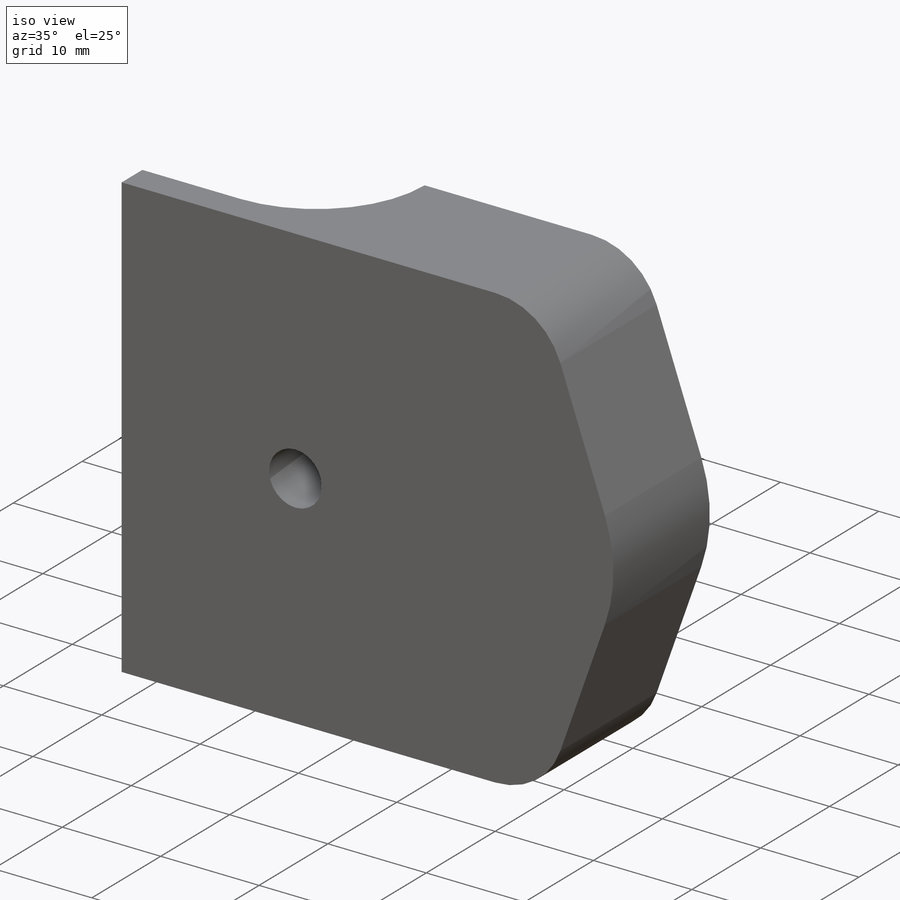
[diagram: iso view]
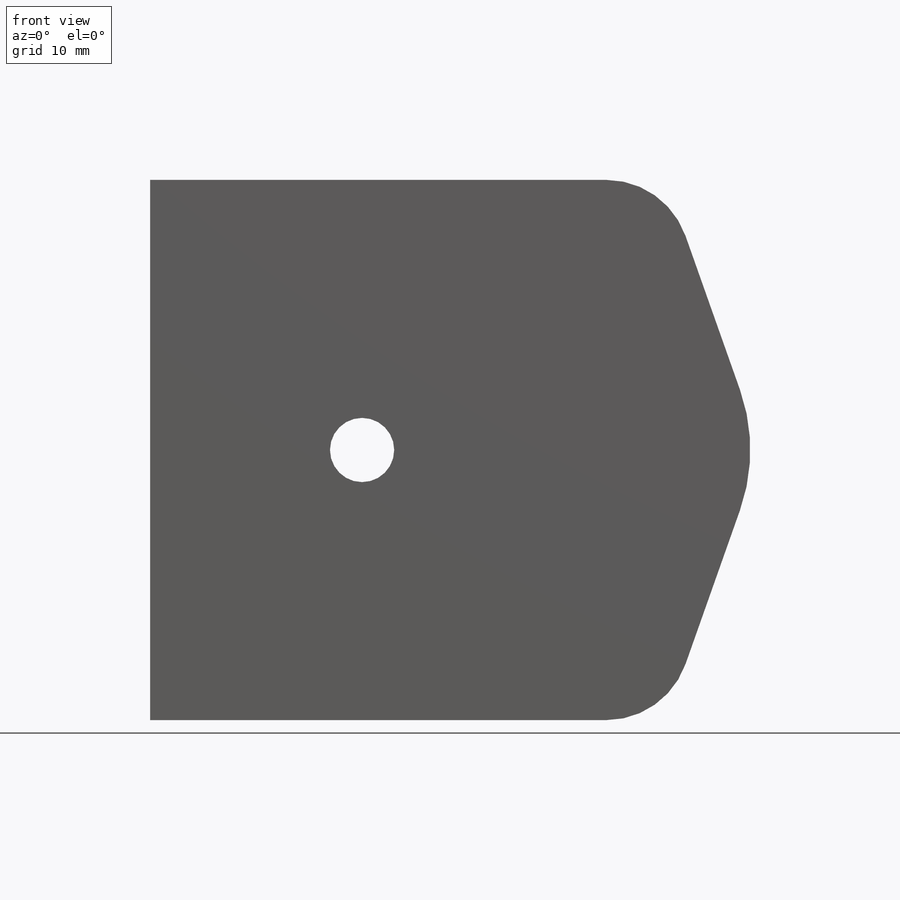
[diagram: front view]
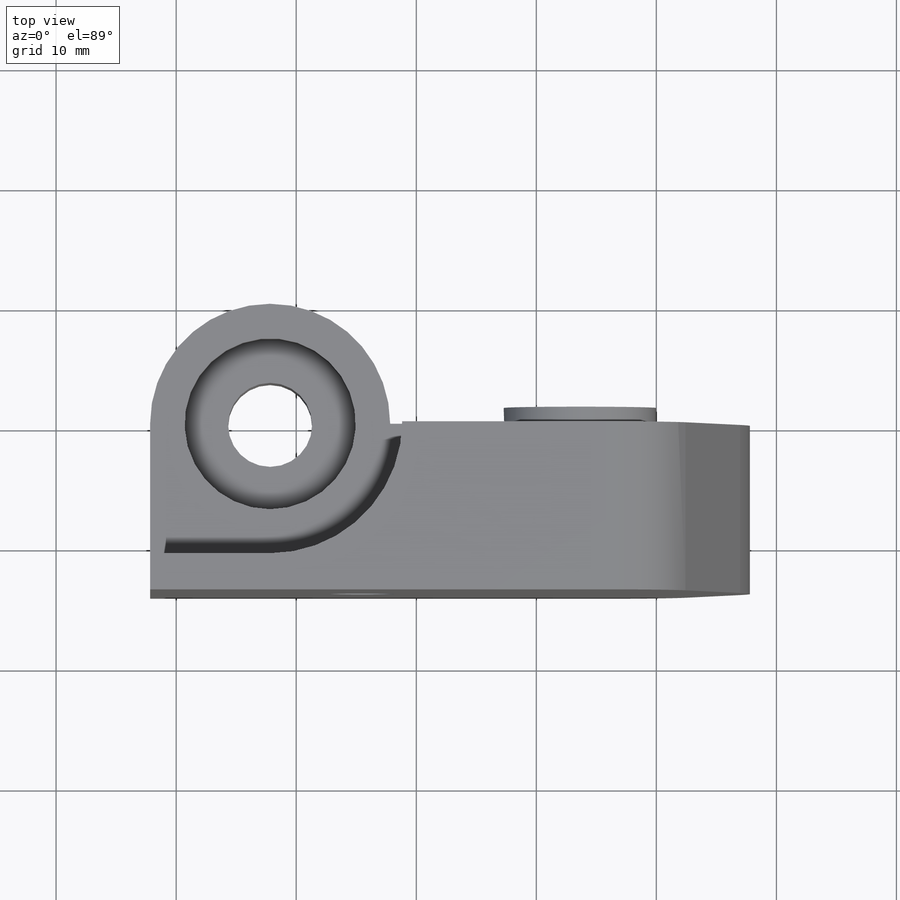
[diagram: top view]
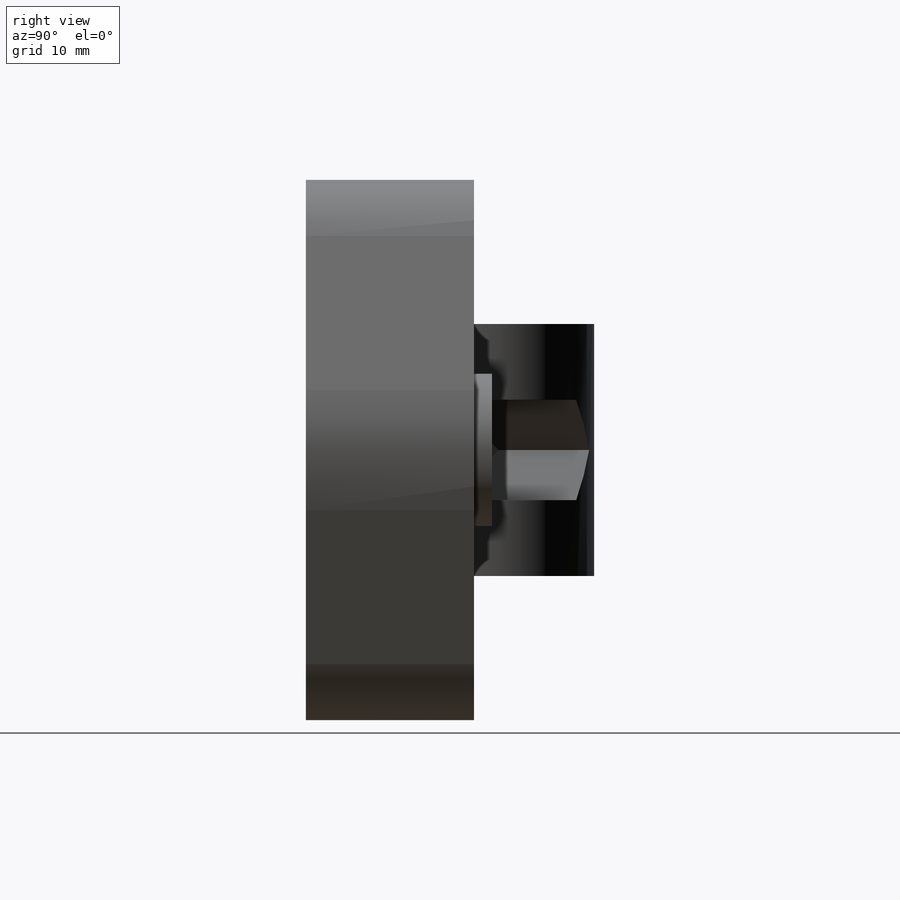
[diagram: right view]
SOLIDWORKS PART (.sldprt)
format: sldprt  version: not decoded by parser v0  size: 652,800 bytes
history: native  units: mm
features: sketch x21, extrude x11, cut_extrude x10, material x1, fillet x1 (+16 scaffold rows collapsed)
feature tree (60):
  scaffold x16  (default folders/planes/origin — collapsed)
  material  "Material <not specified>"
  sketch  "Sketch1"  dims[c1.D1=5.35mm c1.D8=7.0mm c1.D9=7.0mm c1.D6=13.5mm c1.D7=15.875mm c1.D15=346.232mm c1.D12=355.6mm c1.D14=355.6mm c2.D12=374.0mm c2.D14=346.232mm c2.D11=355.6mm c3.D12=3.0mm c3.D11=15.0mm c3.D5=15.0mm c3.D2=21.0mm c3.D3=45.0mm c3.D4=26.0mm c4.D5=13.0mm c4.D6=30.0mm c4.D7=30.0mm c4.D10=45.0mm c4.D4=20.0mm c5.D5=10.0mm c5.D11=13.0mm c5.D12=26.0mm c5.D14=177.8mm c5.D7=17.66mm c6.D11=5.0mm c6.D12=~4.31966mm c6.D5=15.0mm c6.D10=~14.193553mm c7.D5=~14.193553mm c7.D10=50.0mm c7.D11=15.5mm c7.D13=154.0mm]
  extrude  "Boss-Extrude6"  Depth=10mm
  sketch  "Sketch9"
  extrude  "Boss-Extrude8"  [1 undecoded]
  sketch  "Sketch10"  dims[D1=7.0mm]
  cut_extrude  "Cut-Extrude5"  [1 undecoded]
  sketch  "Sketch11"  dims[D1=14.25mm]
  cut_extrude  "Cut-Extrude6"  Depth=5mm
  sketch  "Sketch12"  dims[D1=14.25mm]
  cut_extrude  "Cut-Extrude7"  Depth=5mm
  sketch  "Sketch14"  dims[D1=8.35mm]
  sketch  "Sketch15"
  extrude  "Boss-Extrude9"  Depth=5mm
  sketch  "Sketch18"  dims[c1.D1=7.0mm c1.D2=7.0mm c2.D1=~12.739309mm]
  sketch  "Sketch19"  dims[D1=11.0mm]
  extrude  "Boss-Extrude11"  [1 undecoded]
  sketch  "Sketch21"  dims[D1=11.0mm]
  extrude  "Boss-Extrude13"  [1 undecoded]
  cut_extrude  "Cut-Extrude11"  Depth=1.67mm
  sketch  "Sketch23"
  cut_extrude  "Cut-Extrude13"  [1 undecoded]
  sketch  "Sketch24"
  cut_extrude  "Cut-Extrude14"  [1 undecoded]
  cut_extrude  "Cut-Extrude10"  [1 undecoded]
  sketch  "Sketch26"  dims[D1=5.35mm D2=8.35mm]
  extrude  "Boss-Extrude14"  Depth=5mm
  sketch  "Sketch27"  dims[D1=5.35mm]
  extrude  "Boss-Extrude15"  Depth=5mm
  sketch  "Sketch30"  dims[D1=5.35mm D2=8.35mm]
  cut_extrude  "Cut-Extrude15"  Depth=10mm
  sketch  "Sketch31"  dims[D1=0.0mm]
  extrude  "Boss-Extrude16"  [1 undecoded]
  sketch  "Sketch32"
  extrude  "Boss-Extrude17"  Depth=2mm
  sketch  "Sketch34"  dims[D1=12.7mm D2=13.5mm]
  extrude  "Boss-Extrude18"  Depth=1.5mm
  sketch  "Sketch35"
  extrude  "Boss-Extrude19"  Depth=4mm
  sketch  "Sketch36"
  cut_extrude  "Cut-Extrude16"  [1 undecoded]
  sketch  "Sketch38"
  cut_extrude  "Cut-Extrude17"  [1 undecoded]
  fillet  "Fillet1"  Radius=10mm
decode coverage: 25 of 43 modeling features carry decoded parameters
note: ~ marks probable driven/reference dimensions
note: 10 parameter values undecoded
summary: no parameter record found for 10 features
note: suppression state not decoded; provenance and decode notes live in map.json
